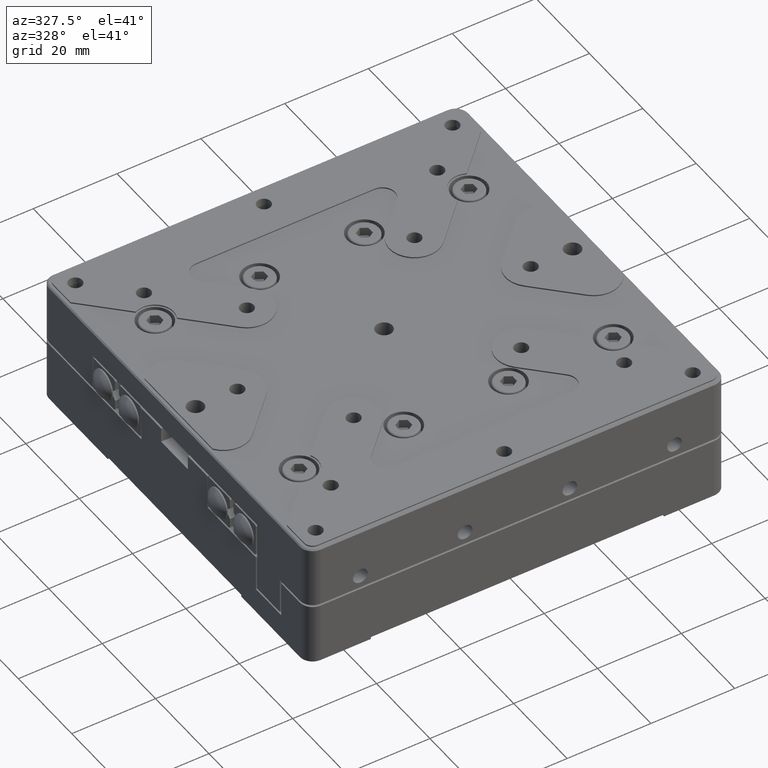
[diagram: clean part render]
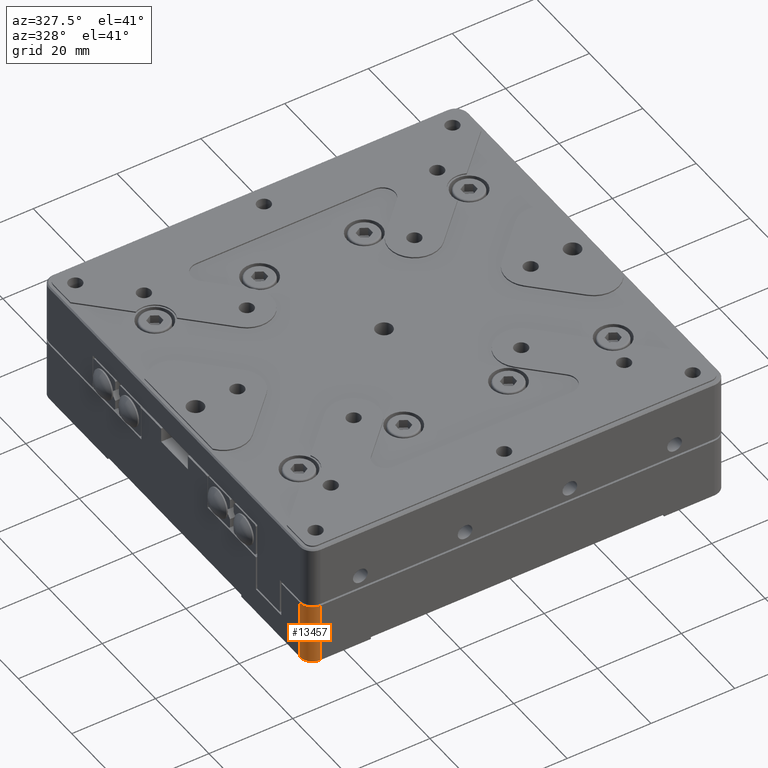
[diagram: same view with one face highlighted and labeled with its STEP entity id]
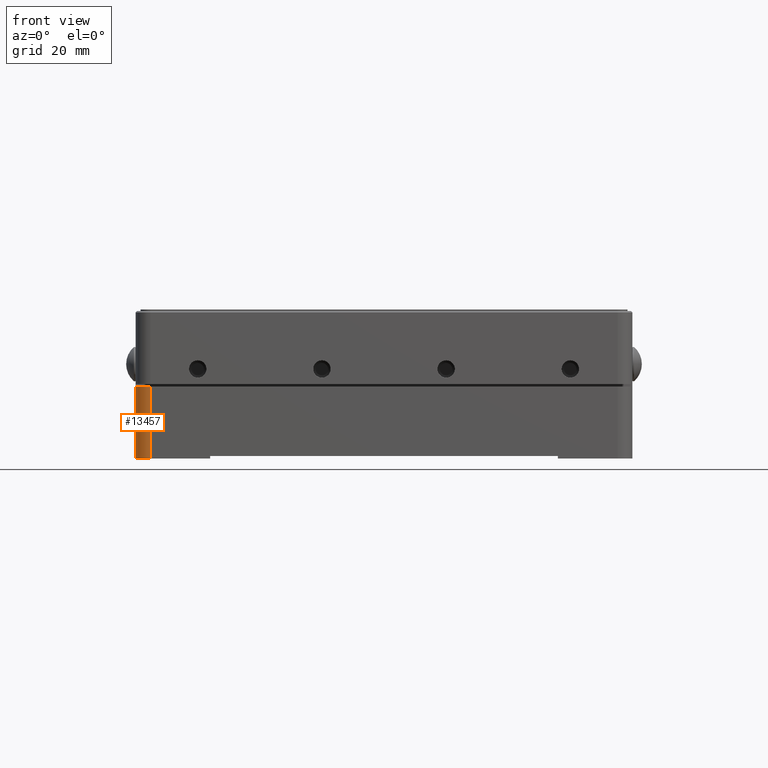
[diagram: same view with one face highlighted and labeled with its STEP entity id]
A machine part, auxiliary view. The second image highlights one B-rep face of the part: STEP entity #13457.
A second angle (front view) of the same face is appended — the face is thin or edge-on in the first view.
In plain terms, the highlighted cylindrical surface (edge-blend (fillet) strip) has radius 3 mm, axis along (0, 0, 1).
Its self-contained STEP definition (entity closure, byte-faithful):
#789 = CARTESIAN_POINT ( 'NONE',  ( -50.00000000000000000, -47.00000000000000000, 0.000000000000000000 ) ) ;
#1715 = ORIENTED_EDGE ( 'NONE', *, *, #3849, .F. ) ;
#2232 = CYLINDRICAL_SURFACE ( 'NONE', #23369, 3.000000000000002665 ) ;
#3849 = EDGE_CURVE ( 'NONE', #21268, #16258, #23005, .T. ) ;
#6135 = DIRECTION ( 'NONE',  ( 1.000000000000000000, 0.000000000000000000, 0.000000000000000000 ) ) ;
#6185 = EDGE_LOOP ( 'NONE', ( #1715, #17009, #20721, #13872 ) ) ;
#6423 = VERTEX_POINT ( 'NONE', #14423 ) ;
#6524 = AXIS2_PLACEMENT_3D ( 'NONE', #10607, #17446, #6135 ) ;
#6896 = CARTESIAN_POINT ( 'NONE',  ( -47.00000000000000000, -50.00000000000000000, 0.000000000000000000 ) ) ;
#7974 = VERTEX_POINT ( 'NONE', #9387 ) ;
#8517 = CARTESIAN_POINT ( 'NONE',  ( -47.00000000000000000, -47.00000000000000000, -44.22207999999999828 ) ) ;
#9387 = CARTESIAN_POINT ( 'NONE',  ( -50.00000000000000000, -47.00000000000000000, 0.000000000000000000 ) ) ;
#10607 = CARTESIAN_POINT ( 'NONE',  ( -47.00000000000000000, -47.00000000000000000, 0.000000000000000000 ) ) ;
#12424 = DIRECTION ( 'NONE',  ( 1.000000000000000000, 0.000000000000000000, 0.000000000000000000 ) ) ;
#13164 = AXIS2_PLACEMENT_3D ( 'NONE', #25037, #18860, #25307 ) ;
#13457 = ADVANCED_FACE ( 'NONE', ( #19009 ), #2232, .T. ) ;
#13872 = ORIENTED_EDGE ( 'NONE', *, *, #17650, .T. ) ;
#14423 = CARTESIAN_POINT ( 'NONE',  ( -47.00000000000000000, -50.00000000000000000, 0.000000000000000000 ) ) ;
#15420 = DIRECTION ( 'NONE',  ( 0.000000000000000000, 0.000000000000000000, -1.000000000000000000 ) ) ;
#16258 = VERTEX_POINT ( 'NONE', #19037 ) ;
#16775 = CIRCLE ( 'NONE', #6524, 3.000000000000002665 ) ;
#17009 = ORIENTED_EDGE ( 'NONE', *, *, #27248, .F. ) ;
#17446 = DIRECTION ( 'NONE',  ( 0.000000000000000000, 0.000000000000000000, -1.000000000000000000 ) ) ;
#17526 = LINE ( 'NONE', #789, #22414 ) ;
#17650 = EDGE_CURVE ( 'NONE', #7974, #16258, #17526, .T. ) ;
#18860 = DIRECTION ( 'NONE',  ( 0.000000000000000000, 0.000000000000000000, -1.000000000000000000 ) ) ;
#19009 = FACE_OUTER_BOUND ( 'NONE', #6185, .T. ) ;
#19037 = CARTESIAN_POINT ( 'NONE',  ( -50.00000000000000000, -47.00000000000000000, -14.50000000000000000 ) ) ;
#19185 = CARTESIAN_POINT ( 'NONE',  ( -47.00000000000000000, -50.00000000000000000, -14.50000000000000000 ) ) ;
#19275 = DIRECTION ( 'NONE',  ( 0.000000000000000000, 0.000000000000000000, 1.000000000000000000 ) ) ;
#20721 = ORIENTED_EDGE ( 'NONE', *, *, #23356, .T. ) ;
#21268 = VERTEX_POINT ( 'NONE', #19185 ) ;
#22297 = DIRECTION ( 'NONE',  ( 0.000000000000000000, 0.000000000000000000, -1.000000000000000000 ) ) ;
#22414 = VECTOR ( 'NONE', #22297, 1000.000000000000000 ) ;
#23005 = CIRCLE ( 'NONE', #13164, 3.000000000000002665 ) ;
#23356 = EDGE_CURVE ( 'NONE', #6423, #7974, #16775, .T. ) ;
#23369 = AXIS2_PLACEMENT_3D ( 'NONE', #8517, #19275, #12424 ) ;
#25037 = CARTESIAN_POINT ( 'NONE',  ( -47.00000000000000000, -47.00000000000000000, -14.50000000000000000 ) ) ;
#25307 = DIRECTION ( 'NONE',  ( 1.000000000000000000, 0.000000000000000000, 0.000000000000000000 ) ) ;
#26063 = LINE ( 'NONE', #6896, #27060 ) ;
#27060 = VECTOR ( 'NONE', #15420, 1000.000000000000000 ) ;
#27248 = EDGE_CURVE ( 'NONE', #6423, #21268, #26063, .T. ) ;